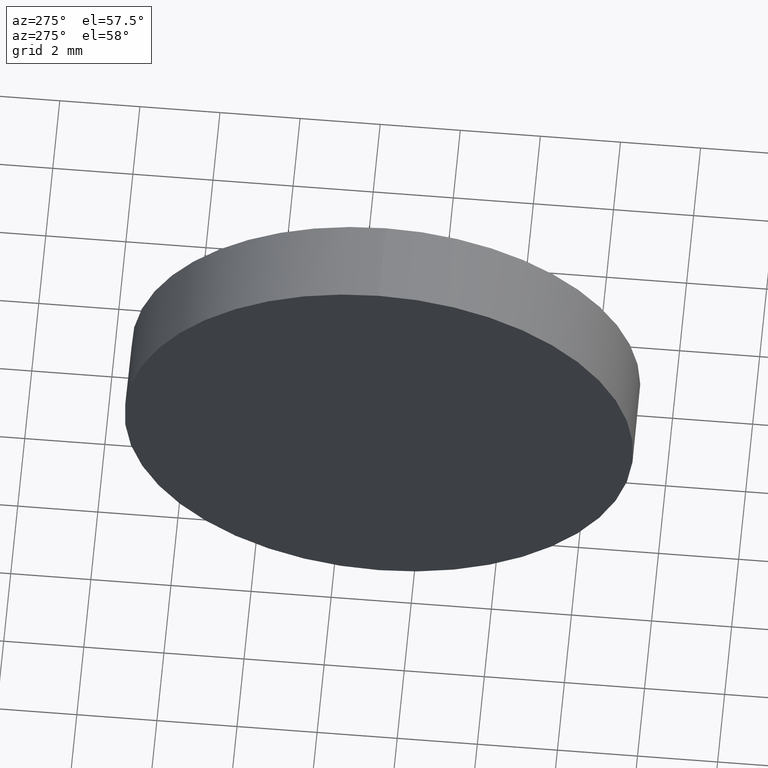
[diagram: clean part render]
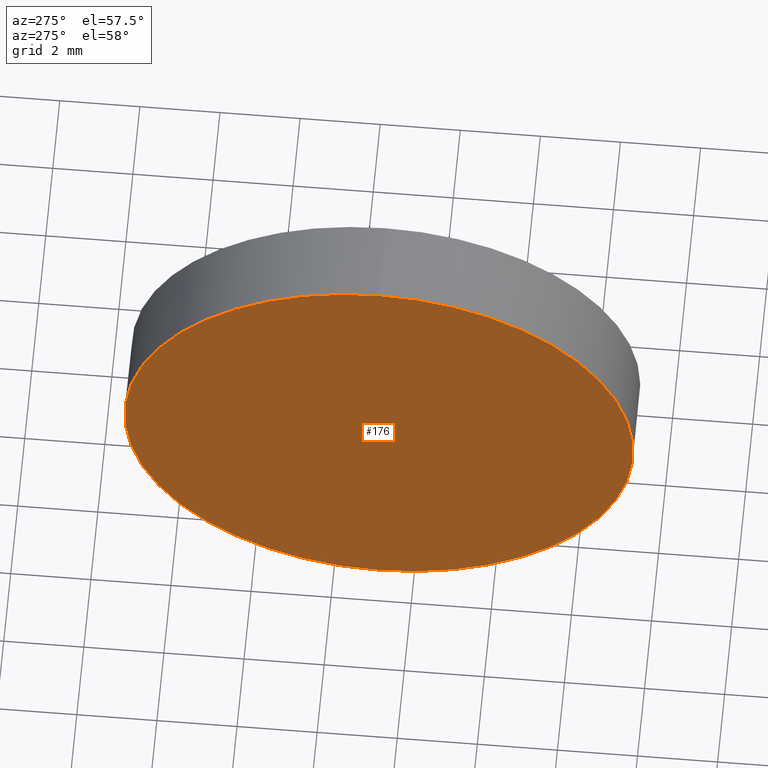
[diagram: same view with one face highlighted and labeled with its STEP entity id]
A machine part, auxiliary view. The second image highlights one B-rep face of the part: STEP entity #176.
In plain terms, the highlighted planar face has unit normal (1, 0, 0).
Its self-contained STEP definition (entity closure, byte-faithful):
#1 = CARTESIAN_POINT ( 'NONE',  ( 440.7273123846862900, -5.129459319946108500, 0.0000000000000000000 ) ) ;
#6 = DIRECTION ( 'NONE',  ( 1.000000000000000000, 0.0000000000000000000, 0.0000000000000000000 ) ) ;
#7 = VERTEX_POINT ( 'NONE', #55 ) ;
#12 = AXIS2_PLACEMENT_3D ( 'NONE', #185, #82, #125 ) ;
#13 = ORIENTED_EDGE ( 'NONE', *, *, #41, .T. ) ;
#39 = DIRECTION ( 'NONE',  ( 0.0000000000000000000, 0.0000000000000000000, -1.000000000000000000 ) ) ;
#41 = EDGE_CURVE ( 'NONE', #7, #168, #135, .T. ) ;
#42 = DIRECTION ( 'NONE',  ( -1.000000000000000000, -0.0000000000000000000, -0.0000000000000000000 ) ) ;
#43 = AXIS2_PLACEMENT_3D ( 'NONE', #74, #42, #85 ) ;
#46 = FACE_OUTER_BOUND ( 'NONE', #102, .T. ) ;
#49 = AXIS2_PLACEMENT_3D ( 'NONE', #1, #6, #39 ) ;
#55 = CARTESIAN_POINT ( 'NONE',  ( 440.7273123846862900, -5.129459319946108500, 6.349999999999999600 ) ) ;
#60 = PLANE ( 'NONE',  #49 ) ;
#61 = CARTESIAN_POINT ( 'NONE',  ( 440.7273123846862900, -5.129459319946107600, -6.349999999999999600 ) ) ;
#74 = CARTESIAN_POINT ( 'NONE',  ( 440.7273123846862900, -5.129459319946108500, 0.0000000000000000000 ) ) ;
#82 = DIRECTION ( 'NONE',  ( -1.000000000000000000, -0.0000000000000000000, -0.0000000000000000000 ) ) ;
#85 = DIRECTION ( 'NONE',  ( 0.0000000000000000000, 0.0000000000000000000, 1.000000000000000000 ) ) ;
#102 = EDGE_LOOP ( 'NONE', ( #13, #162 ) ) ;
#111 = CIRCLE ( 'NONE', #12, 6.349999999999999600 ) ;
#125 = DIRECTION ( 'NONE',  ( 0.0000000000000000000, 0.0000000000000000000, 1.000000000000000000 ) ) ;
#135 = CIRCLE ( 'NONE', #43, 6.349999999999999600 ) ;
#162 = ORIENTED_EDGE ( 'NONE', *, *, #186, .T. ) ;
#168 = VERTEX_POINT ( 'NONE', #61 ) ;
#176 = ADVANCED_FACE ( 'NONE', ( #46 ), #60, .F. ) ;
#185 = CARTESIAN_POINT ( 'NONE',  ( 440.7273123846862900, -5.129459319946108500, 0.0000000000000000000 ) ) ;
#186 = EDGE_CURVE ( 'NONE', #168, #7, #111, .T. ) ;